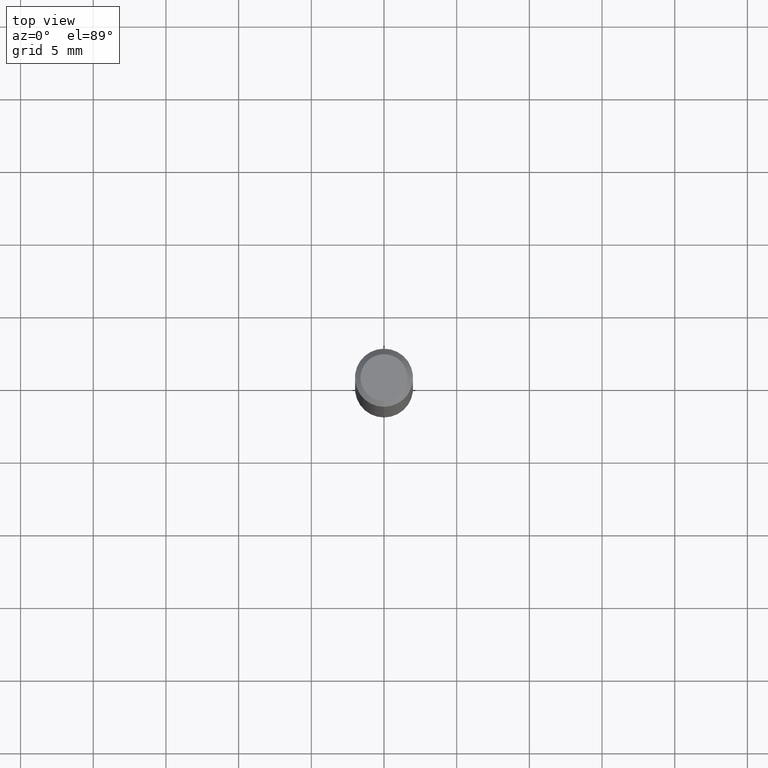
[diagram: clean part render]
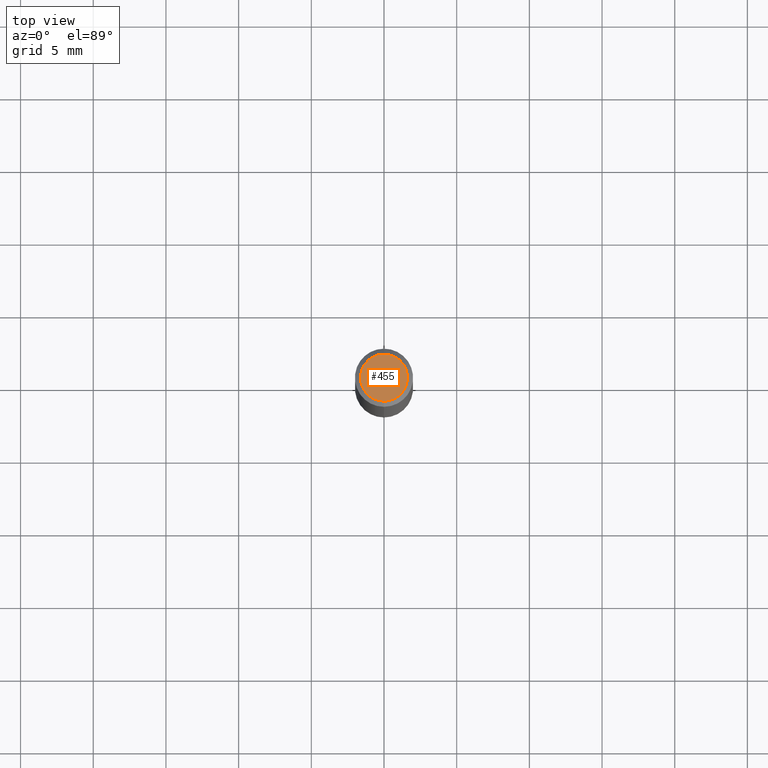
[diagram: same view with one face highlighted and labeled with its STEP entity id]
A machine part, top view. The second image highlights one B-rep face of the part: STEP entity #455.
In plain terms, the highlighted planar face has unit normal (0, -0, -1).
Its self-contained STEP definition (entity closure, byte-faithful):
#18 = DIRECTION ( 'NONE',  ( -6.982962677686264344E-15, -1.000000000000000000, 3.491461198973915131E-15 ) ) ;
#44 = CARTESIAN_POINT ( 'NONE',  ( 4.451638707024993845E-16, 0.06375000000000000111, -1.050321514364470136E-16 ) ) ;
#61 = CIRCLE ( 'NONE', #141, 0.06375000000000000111 ) ;
#96 = VERTEX_POINT ( 'NONE', #420 ) ;
#97 = PLANE ( 'NONE',  #388 ) ;
#116 = VERTEX_POINT ( 'NONE', #188 ) ;
#125 = DIRECTION ( 'NONE',  ( -6.982962677686264344E-15, -1.000000000000000000, 3.491461198973915131E-15 ) ) ;
#141 = AXIS2_PLACEMENT_3D ( 'NONE', #377, #267, #18 ) ;
#161 = AXIS2_PLACEMENT_3D ( 'NONE', #512, #280, #125 ) ;
#162 = EDGE_LOOP ( 'NONE', ( #242, #279 ) ) ;
#177 = EDGE_CURVE ( 'NONE', #96, #116, #61, .T. ) ;
#188 = CARTESIAN_POINT ( 'NONE',  ( 4.975360907851465623E-16, 0.06375000000000000111, 1.251634856169309859E-17 ) ) ;
#210 = DIRECTION ( 'NONE',  ( 2.445482869780653325E-29, -3.491461198973915131E-15, -1.000000000000000000 ) ) ;
#231 = CIRCLE ( 'NONE', #161, 0.06375000000000000111 ) ;
#242 = ORIENTED_EDGE ( 'NONE', *, *, #307, .T. ) ;
#267 = DIRECTION ( 'NONE',  ( -2.445482869780653605E-29, 3.491461198973915131E-15, 1.000000000000000000 ) ) ;
#279 = ORIENTED_EDGE ( 'NONE', *, *, #177, .T. ) ;
#280 = DIRECTION ( 'NONE',  ( -2.445482869780653605E-29, 3.491461198973915131E-15, 1.000000000000000000 ) ) ;
#307 = EDGE_CURVE ( 'NONE', #116, #96, #231, .T. ) ;
#377 = CARTESIAN_POINT ( 'NONE',  ( -5.749256862277255526E-45, 8.208320534821828257E-31, 2.350969999962801875E-16 ) ) ;
#388 = AXIS2_PLACEMENT_3D ( 'NONE', #44, #210, #456 ) ;
#420 = CARTESIAN_POINT ( 'NONE',  ( -4.888104823412213911E-16, -0.06375000000000000111, 4.576776514308672702E-16 ) ) ;
#441 = FACE_OUTER_BOUND ( 'NONE', #162, .T. ) ;
#455 = ADVANCED_FACE ( 'NONE', ( #441 ), #97, .F. ) ;
#456 = DIRECTION ( 'NONE',  ( 6.982962677686265922E-15, 1.000000000000000000, -3.491461198973915131E-15 ) ) ;
#512 = CARTESIAN_POINT ( 'NONE',  ( -5.749256862277255526E-45, 8.208320534821828257E-31, 2.350969999962801875E-16 ) ) ;